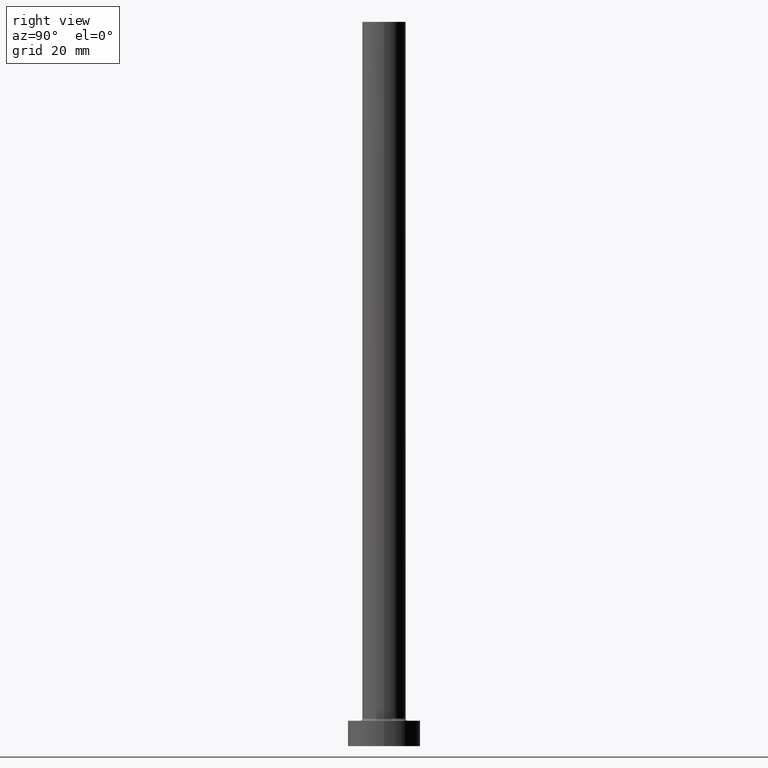
[diagram: clean part render]
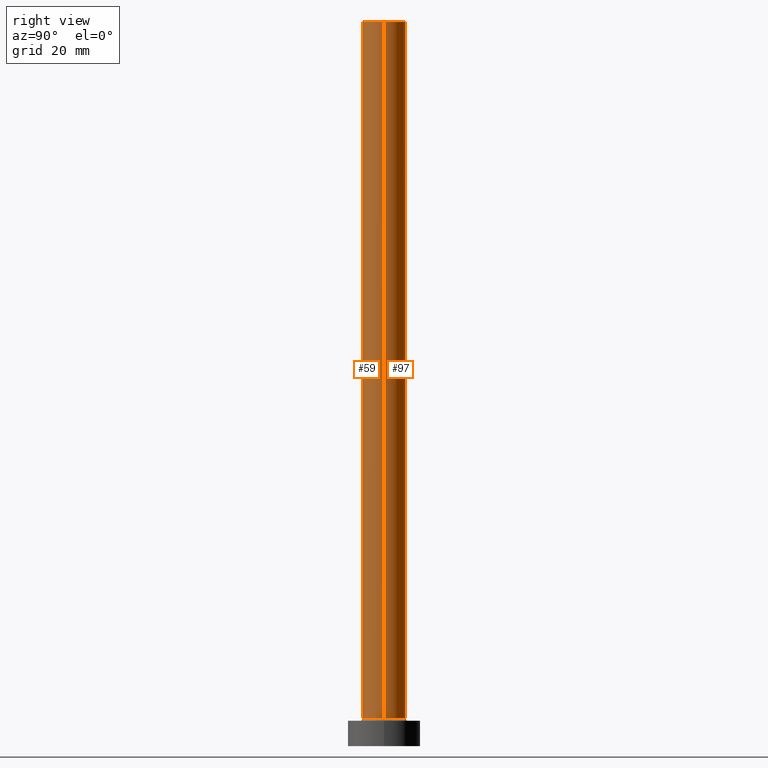
[diagram: same view with one multi-face feature highlighted, each face labeled with its STEP entity id]
A machine part, right view. The highlighted faces form ONE feature: a constant-radius fillet chain: 2 tangent blend faces with common blend radius 6 mm. The faces share edges in the B-rep.
Their STEP definitions:
[1] entity #97 (Cylinder):
#5 = EDGE_LOOP ( 'NONE', ( #305, #304, #359, #113 ) ) ;
#7 = AXIS2_PLACEMENT_3D ( 'NONE', #411, #235, #431 ) ;
#8 = DIRECTION ( 'NONE',  ( -0.000000000000000000, -0.000000000000000000, -1.000000000000000000 ) ) ;
#19 = CARTESIAN_POINT ( 'NONE',  ( -6.000000000000000888, 0.000000000000000000, 200.0000000000000000 ) ) ;
#42 = VERTEX_POINT ( 'NONE', #441 ) ;
#54 = DIRECTION ( 'NONE',  ( 1.000000000000000000, 0.000000000000000000, 0.000000000000000000 ) ) ;
#57 = LINE ( 'NONE', #200, #85 ) ;
#61 = DIRECTION ( 'NONE',  ( -1.000000000000000000, 0.000000000000000000, 0.000000000000000000 ) ) ;
#67 = CARTESIAN_POINT ( 'NONE',  ( 0.000000000000000000, 0.000000000000000000, 7.700000000000012612 ) ) ;
#79 = EDGE_CURVE ( 'NONE', #367, #294, #57, .T. ) ;
#85 = VECTOR ( 'NONE', #336, 1000.000000000000000 ) ;
#91 = EDGE_CURVE ( 'NONE', #367, #358, #130, .T. ) ;
#97 = ADVANCED_FACE ( 'NONE', ( #167 ), #238, .T. ) ;
#113 = ORIENTED_EDGE ( 'NONE', *, *, #220, .F. ) ;
#115 = DIRECTION ( 'NONE',  ( 0.000000000000000000, 0.000000000000000000, 1.000000000000000000 ) ) ;
#127 = VECTOR ( 'NONE', #8, 1000.000000000000000 ) ;
#130 = CIRCLE ( 'NONE', #7, 6.000000000000000888 ) ;
#167 = FACE_OUTER_BOUND ( 'NONE', #5, .T. ) ;
#200 = CARTESIAN_POINT ( 'NONE',  ( 6.000000000000000888, 7.347880794884120722E-16, 200.0000000000000000 ) ) ;
#220 = EDGE_CURVE ( 'NONE', #358, #42, #350, .T. ) ;
#231 = AXIS2_PLACEMENT_3D ( 'NONE', #67, #115, #54 ) ;
#235 = DIRECTION ( 'NONE',  ( 0.000000000000000000, 0.000000000000000000, 1.000000000000000000 ) ) ;
#238 = CYLINDRICAL_SURFACE ( 'NONE', #317, 6.000000000000000888 ) ;
#294 = VERTEX_POINT ( 'NONE', #402 ) ;
#304 = ORIENTED_EDGE ( 'NONE', *, *, #79, .T. ) ;
#305 = ORIENTED_EDGE ( 'NONE', *, *, #91, .F. ) ;
#317 = AXIS2_PLACEMENT_3D ( 'NONE', #385, #382, #61 ) ;
#336 = DIRECTION ( 'NONE',  ( -0.000000000000000000, -0.000000000000000000, -1.000000000000000000 ) ) ;
#350 = LINE ( 'NONE', #19, #127 ) ;
#358 = VERTEX_POINT ( 'NONE', #384 ) ;
#359 = ORIENTED_EDGE ( 'NONE', *, *, #398, .T. ) ;
#367 = VERTEX_POINT ( 'NONE', #428 ) ;
#380 = CIRCLE ( 'NONE', #231, 6.000000000000000888 ) ;
#382 = DIRECTION ( 'NONE',  ( -0.000000000000000000, -0.000000000000000000, -1.000000000000000000 ) ) ;
#384 = CARTESIAN_POINT ( 'NONE',  ( -6.000000000000000888, 0.000000000000000000, 200.0000000000000000 ) ) ;
#385 = CARTESIAN_POINT ( 'NONE',  ( 0.000000000000000000, 0.000000000000000000, 200.0000000000000000 ) ) ;
#398 = EDGE_CURVE ( 'NONE', #294, #42, #380, .T. ) ;
#402 = CARTESIAN_POINT ( 'NONE',  ( 6.000000000000000888, 7.347880794884120722E-16, 7.700000000000012612 ) ) ;
#411 = CARTESIAN_POINT ( 'NONE',  ( 0.000000000000000000, 0.000000000000000000, 200.0000000000000000 ) ) ;
#428 = CARTESIAN_POINT ( 'NONE',  ( 6.000000000000000888, 7.347880794884120722E-16, 200.0000000000000000 ) ) ;
#431 = DIRECTION ( 'NONE',  ( 1.000000000000000000, 0.000000000000000000, 0.000000000000000000 ) ) ;
#441 = CARTESIAN_POINT ( 'NONE',  ( -6.000000000000000888, 0.000000000000000000, 7.700000000000012612 ) ) ;
[2] entity #59 (Cylinder):
#8 = DIRECTION ( 'NONE',  ( -0.000000000000000000, -0.000000000000000000, -1.000000000000000000 ) ) ;
#19 = CARTESIAN_POINT ( 'NONE',  ( -6.000000000000000888, 0.000000000000000000, 200.0000000000000000 ) ) ;
#26 = DIRECTION ( 'NONE',  ( -1.000000000000000000, 0.000000000000000000, 0.000000000000000000 ) ) ;
#42 = VERTEX_POINT ( 'NONE', #441 ) ;
#52 = ORIENTED_EDGE ( 'NONE', *, *, #169, .F. ) ;
#57 = LINE ( 'NONE', #200, #85 ) ;
#59 = ADVANCED_FACE ( 'NONE', ( #153 ), #157, .T. ) ;
#79 = EDGE_CURVE ( 'NONE', #367, #294, #57, .T. ) ;
#85 = VECTOR ( 'NONE', #336, 1000.000000000000000 ) ;
#95 = CARTESIAN_POINT ( 'NONE',  ( 0.000000000000000000, 0.000000000000000000, 200.0000000000000000 ) ) ;
#125 = DIRECTION ( 'NONE',  ( 0.000000000000000000, 0.000000000000000000, 1.000000000000000000 ) ) ;
#127 = VECTOR ( 'NONE', #8, 1000.000000000000000 ) ;
#142 = ORIENTED_EDGE ( 'NONE', *, *, #79, .F. ) ;
#153 = FACE_OUTER_BOUND ( 'NONE', #438, .T. ) ;
#156 = CIRCLE ( 'NONE', #234, 6.000000000000000888 ) ;
#157 = CYLINDRICAL_SURFACE ( 'NONE', #159, 6.000000000000000888 ) ;
#159 = AXIS2_PLACEMENT_3D ( 'NONE', #95, #195, #26 ) ;
#169 = EDGE_CURVE ( 'NONE', #358, #367, #265, .T. ) ;
#195 = DIRECTION ( 'NONE',  ( -0.000000000000000000, -0.000000000000000000, -1.000000000000000000 ) ) ;
#200 = CARTESIAN_POINT ( 'NONE',  ( 6.000000000000000888, 7.347880794884120722E-16, 200.0000000000000000 ) ) ;
#213 = ORIENTED_EDGE ( 'NONE', *, *, #220, .T. ) ;
#220 = EDGE_CURVE ( 'NONE', #358, #42, #350, .T. ) ;
#234 = AXIS2_PLACEMENT_3D ( 'NONE', #391, #125, #339 ) ;
#251 = CARTESIAN_POINT ( 'NONE',  ( 0.000000000000000000, 0.000000000000000000, 200.0000000000000000 ) ) ;
#255 = DIRECTION ( 'NONE',  ( 0.000000000000000000, 0.000000000000000000, 1.000000000000000000 ) ) ;
#265 = CIRCLE ( 'NONE', #269, 6.000000000000000888 ) ;
#269 = AXIS2_PLACEMENT_3D ( 'NONE', #251, #255, #399 ) ;
#290 = ORIENTED_EDGE ( 'NONE', *, *, #332, .T. ) ;
#294 = VERTEX_POINT ( 'NONE', #402 ) ;
#332 = EDGE_CURVE ( 'NONE', #42, #294, #156, .T. ) ;
#336 = DIRECTION ( 'NONE',  ( -0.000000000000000000, -0.000000000000000000, -1.000000000000000000 ) ) ;
#339 = DIRECTION ( 'NONE',  ( 1.000000000000000000, 0.000000000000000000, 0.000000000000000000 ) ) ;
#350 = LINE ( 'NONE', #19, #127 ) ;
#358 = VERTEX_POINT ( 'NONE', #384 ) ;
#367 = VERTEX_POINT ( 'NONE', #428 ) ;
#384 = CARTESIAN_POINT ( 'NONE',  ( -6.000000000000000888, 0.000000000000000000, 200.0000000000000000 ) ) ;
#391 = CARTESIAN_POINT ( 'NONE',  ( 0.000000000000000000, 0.000000000000000000, 7.700000000000012612 ) ) ;
#399 = DIRECTION ( 'NONE',  ( 1.000000000000000000, 0.000000000000000000, 0.000000000000000000 ) ) ;
#402 = CARTESIAN_POINT ( 'NONE',  ( 6.000000000000000888, 7.347880794884120722E-16, 7.700000000000012612 ) ) ;
#428 = CARTESIAN_POINT ( 'NONE',  ( 6.000000000000000888, 7.347880794884120722E-16, 200.0000000000000000 ) ) ;
#438 = EDGE_LOOP ( 'NONE', ( #142, #52, #213, #290 ) ) ;
#441 = CARTESIAN_POINT ( 'NONE',  ( -6.000000000000000888, 0.000000000000000000, 7.700000000000012612 ) ) ;